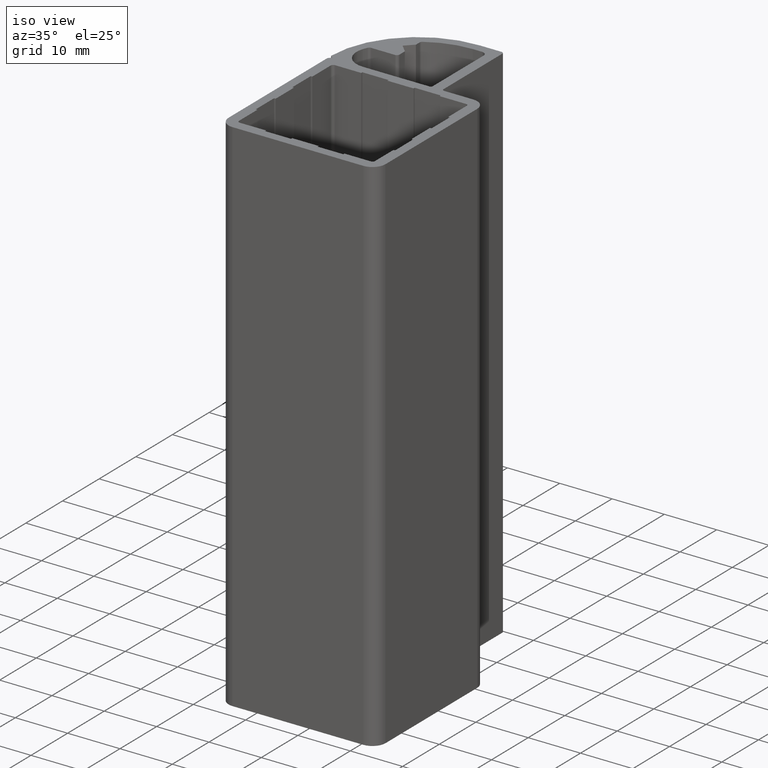
[diagram: clean part render]
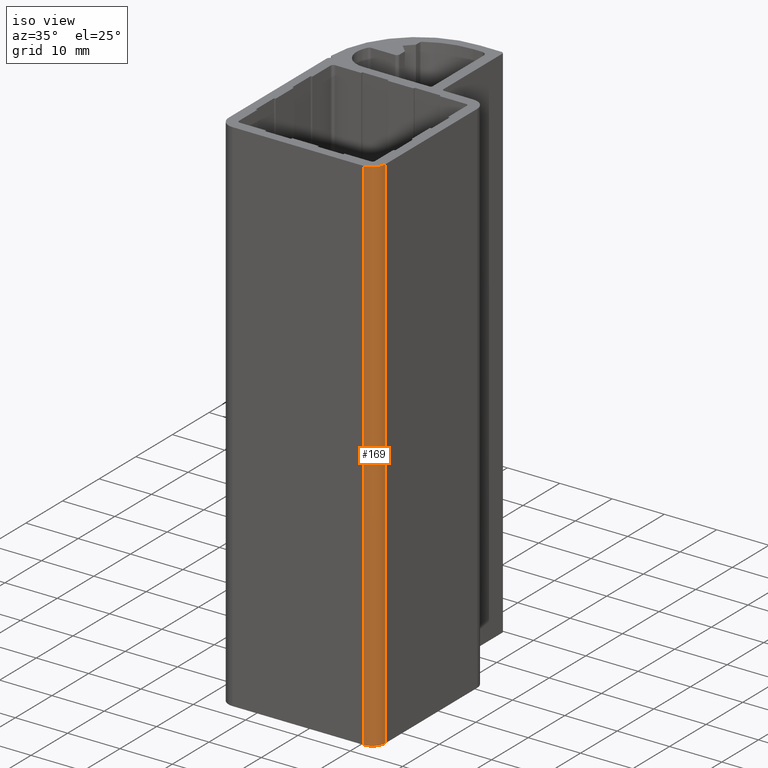
[diagram: same view with one face highlighted and labeled with its STEP entity id]
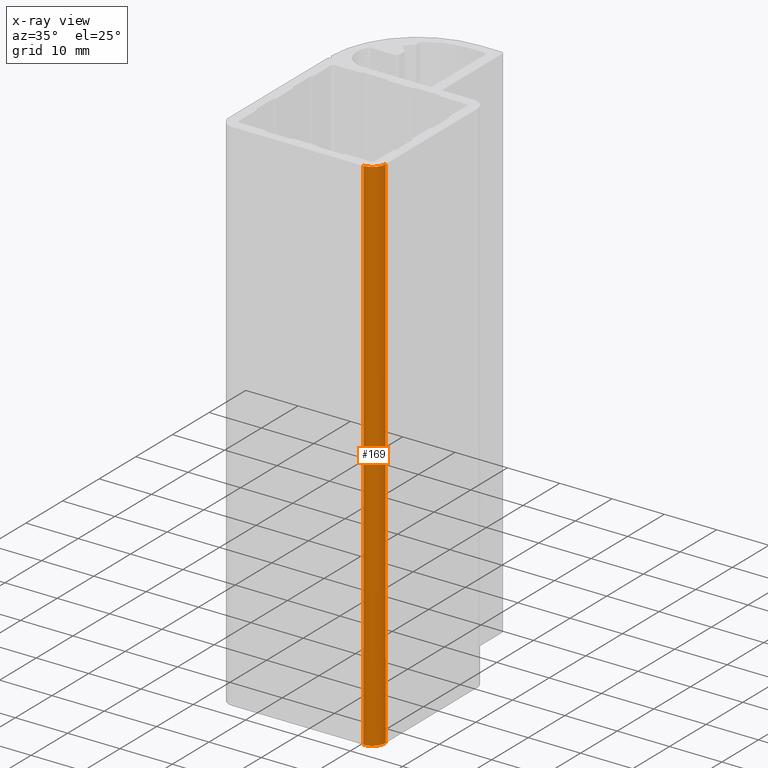
[diagram: x-ray of the same camera — body ghosted, the highlighted face saturated]
A machine part, iso view. The second image highlights one B-rep face of the part: STEP entity #169.
The next image is the same camera in x-ray: the body ghosted, the highlighted face saturated — about 0% of this face is hidden behind the body in this view.
In plain terms, the highlighted cylindrical surface (edge-blend (fillet) strip) has radius 2.5 mm, axis along (0, 0, 1).
Its self-contained STEP definition (entity closure, byte-faithful):
#112=CARTESIAN_POINT('',(12.499999999987494,-1.136868E-013,0.0));
#113=VERTEX_POINT('',#112);
#120=CARTESIAN_POINT('',(12.499999999987494,-1.136868E-013,100.0));
#121=VERTEX_POINT('',#120);
#122=CARTESIAN_POINT('',(12.499999999987494,-1.136868E-013,100.0));
#123=DIRECTION('',(0.0,0.0,-1.0));
#124=VECTOR('',#123,100.0);
#125=LINE('',#122,#124);
#126=EDGE_CURVE('',#121,#113,#125,.T.);
#137=CARTESIAN_POINT('',(12.499999999987494,2.499999999997385,100.0));
#138=DIRECTION('',(0.0,0.0,1.0));
#139=DIRECTION('',(5.053215E-016,-1.0,0.0));
#140=AXIS2_PLACEMENT_3D('',#137,#138,#139);
#141=CYLINDRICAL_SURFACE('',#140,2.499999999997500);
#142=ORIENTED_EDGE('',*,*,#126,.T.);
#143=CARTESIAN_POINT('',(14.999999999984993,2.499999999997385,0.0));
#144=VERTEX_POINT('',#143);
#145=CARTESIAN_POINT('',(12.499999999987494,2.499999999997385,0.0));
#146=DIRECTION('',(0.0,0.0,1.0));
#147=DIRECTION('',(1.0,0.0,0.0));
#148=AXIS2_PLACEMENT_3D('',#145,#146,#147);
#149=CIRCLE('',#148,2.499999999997500);
#150=EDGE_CURVE('',#113,#144,#149,.T.);
#151=ORIENTED_EDGE('',*,*,#150,.T.);
#152=CARTESIAN_POINT('',(14.999999999984993,2.499999999997385,100.0));
#153=VERTEX_POINT('',#152);
#154=CARTESIAN_POINT('',(14.999999999984993,2.499999999997385,100.0));
#155=DIRECTION('',(0.0,0.0,-1.0));
#156=VECTOR('',#155,100.0);
#157=LINE('',#154,#156);
#158=EDGE_CURVE('',#153,#144,#157,.T.);
#159=ORIENTED_EDGE('',*,*,#158,.F.);
#160=CARTESIAN_POINT('',(12.499999999987494,2.499999999997385,100.0));
#161=DIRECTION('',(0.0,0.0,1.0));
#162=DIRECTION('',(1.0,0.0,0.0));
#163=AXIS2_PLACEMENT_3D('',#160,#161,#162);
#164=CIRCLE('',#163,2.499999999997500);
#165=EDGE_CURVE('',#121,#153,#164,.T.);
#166=ORIENTED_EDGE('',*,*,#165,.F.);
#167=EDGE_LOOP('',(#142,#151,#159,#166));
#168=FACE_OUTER_BOUND('',#167,.T.);
#169=ADVANCED_FACE('',(#168),#141,.T.);